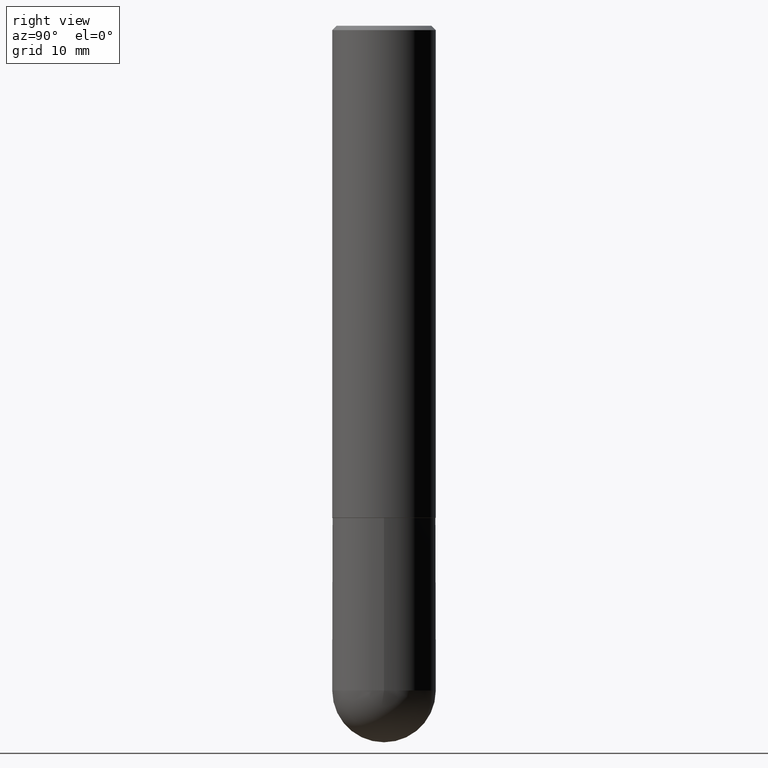
[diagram: clean part render]
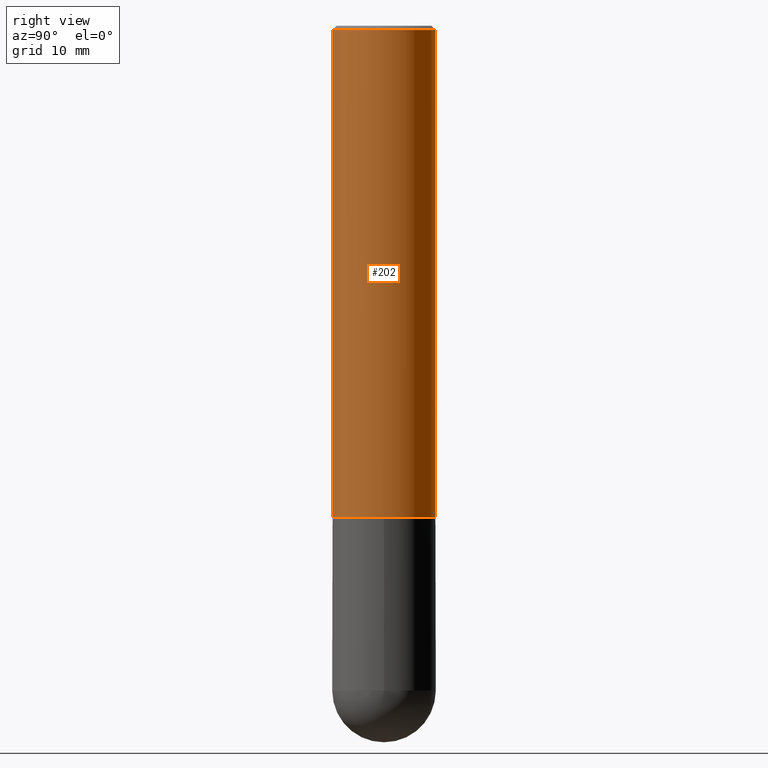
[diagram: same view with one face highlighted and labeled with its STEP entity id]
A machine part, right view. The second image highlights one B-rep face of the part: STEP entity #202.
In plain terms, the highlighted cylindrical surface (partial cylindrical patch) has radius 5.9995 mm, axis along (-0, 0, 1).
Its self-contained STEP definition (entity closure, byte-faithful):
#1 = DIRECTION ( 'NONE',  ( -2.444322153688896365E-29, 3.493123410481168498E-15, 1.000000000000000000 ) ) ;
#6 = DIRECTION ( 'NONE',  ( -6.982962677686265922E-15, -1.000000000000000000, 3.487819265831412533E-15 ) ) ;
#12 = DIRECTION ( 'NONE',  ( -2.444322153688896365E-29, 3.493123410481168498E-15, 1.000000000000000000 ) ) ;
#13 = CIRCLE ( 'NONE', #193, 0.2362000000000002709 ) ;
#22 = VERTEX_POINT ( 'NONE', #30 ) ;
#25 = ORIENTED_EDGE ( 'NONE', *, *, #80, .T. ) ;
#30 = CARTESIAN_POINT ( 'NONE',  ( -1.649375784469443080E-15, -0.2362000000000080979, -2.243099999999999206 ) ) ;
#32 = AXIS2_PLACEMENT_3D ( 'NONE', #162, #12, #203 ) ;
#41 = CARTESIAN_POINT ( 'NONE',  ( 5.482859022939564646E-29, -7.835425122050310720E-15, -2.243100000000000094 ) ) ;
#78 = CYLINDRICAL_SURFACE ( 'NONE', #32, 0.2362000000000001043 ) ;
#80 = EDGE_CURVE ( 'NONE', #184, #215, #102, .T. ) ;
#94 = AXIS2_PLACEMENT_3D ( 'NONE', #288, #1, #6 ) ;
#102 = LINE ( 'NONE', #405, #360 ) ;
#108 = DIRECTION ( 'NONE',  ( -2.444322153688896365E-29, 3.493123410481168498E-15, 1.000000000000000000 ) ) ;
#153 = ORIENTED_EDGE ( 'NONE', *, *, #196, .F. ) ;
#155 = EDGE_LOOP ( 'NONE', ( #239, #25, #259, #153 ) ) ;
#162 = CARTESIAN_POINT ( 'NONE',  ( 0.000000000000000000, 0.000000000000000000, 0.000000000000000000 ) ) ;
#167 = CARTESIAN_POINT ( 'NONE',  ( 1.649375784469495934E-15, 0.2361999999999998545, -0.02000000000000087472 ) ) ;
#184 = VERTEX_POINT ( 'NONE', #199 ) ;
#193 = AXIS2_PLACEMENT_3D ( 'NONE', #41, #108, #296 ) ;
#196 = EDGE_CURVE ( 'NONE', #22, #256, #230, .T. ) ;
#199 = CARTESIAN_POINT ( 'NONE',  ( 1.678301941865385582E-15, 0.2361999999999924438, -2.243100000000000982 ) ) ;
#200 = VECTOR ( 'NONE', #350, 39.37007874015748143 ) ;
#202 = ADVANCED_FACE ( 'NONE', ( #381 ), #78, .T. ) ;
#203 = DIRECTION ( 'NONE',  ( -6.982962677686265922E-15, -1.000000000000000000, 3.493123410481168103E-15 ) ) ;
#215 = VERTEX_POINT ( 'NONE', #167 ) ;
#223 = EDGE_CURVE ( 'NONE', #22, #184, #13, .T. ) ;
#226 = DIRECTION ( 'NONE',  ( -2.444322153688896645E-29, 3.493123410481168498E-15, 1.000000000000000000 ) ) ;
#227 = CIRCLE ( 'NONE', #94, 0.2361999999999999378 ) ;
#230 = LINE ( 'NONE', #348, #200 ) ;
#239 = ORIENTED_EDGE ( 'NONE', *, *, #223, .T. ) ;
#256 = VERTEX_POINT ( 'NONE', #290 ) ;
#259 = ORIENTED_EDGE ( 'NONE', *, *, #277, .F. ) ;
#277 = EDGE_CURVE ( 'NONE', #256, #215, #227, .T. ) ;
#288 = CARTESIAN_POINT ( 'NONE',  ( 4.888644307377804992E-31, -6.986246820962353956E-17, -0.02000000000000005246 ) ) ;
#290 = CARTESIAN_POINT ( 'NONE',  ( -1.620449627073634487E-15, -0.2361999999999999933, -0.01999999999999922673 ) ) ;
#296 = DIRECTION ( 'NONE',  ( -6.982962677686265922E-15, -1.000000000000000000, 3.469747663417773058E-15 ) ) ;
#348 = CARTESIAN_POINT ( 'NONE',  ( -1.649375784469496722E-15, -0.2362000000000001043, 8.250757495556522677E-16 ) ) ;
#350 = DIRECTION ( 'NONE',  ( -2.444322153688896645E-29, 3.493123410481168498E-15, 1.000000000000000000 ) ) ;
#360 = VECTOR ( 'NONE', #226, 39.37007874015748143 ) ;
#381 = FACE_OUTER_BOUND ( 'NONE', #155, .T. ) ;
#405 = CARTESIAN_POINT ( 'NONE',  ( 1.678301941865357183E-15, 0.2362000000000001043, -8.250757495556522677E-16 ) ) ;